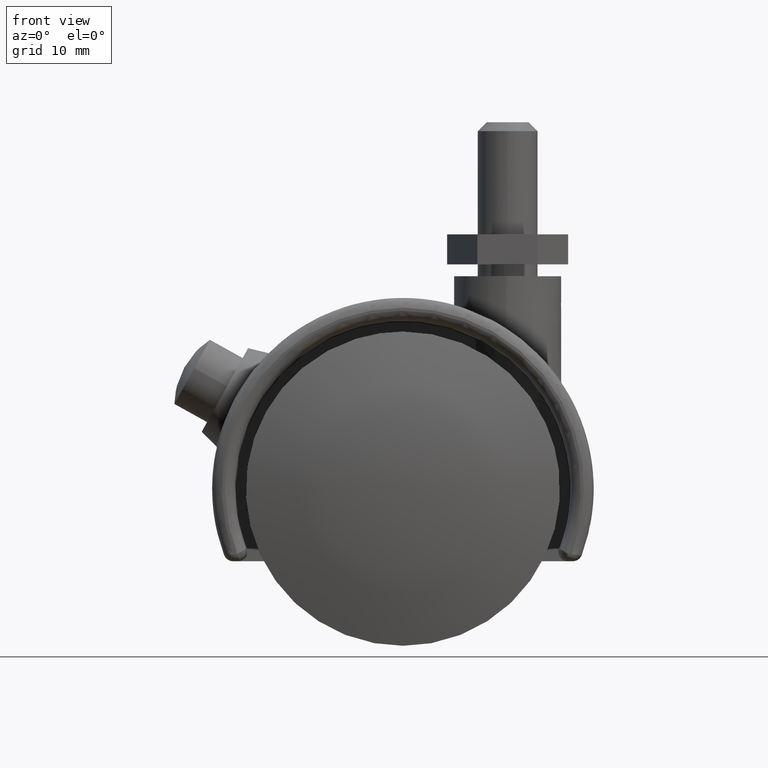
[diagram: clean part render]
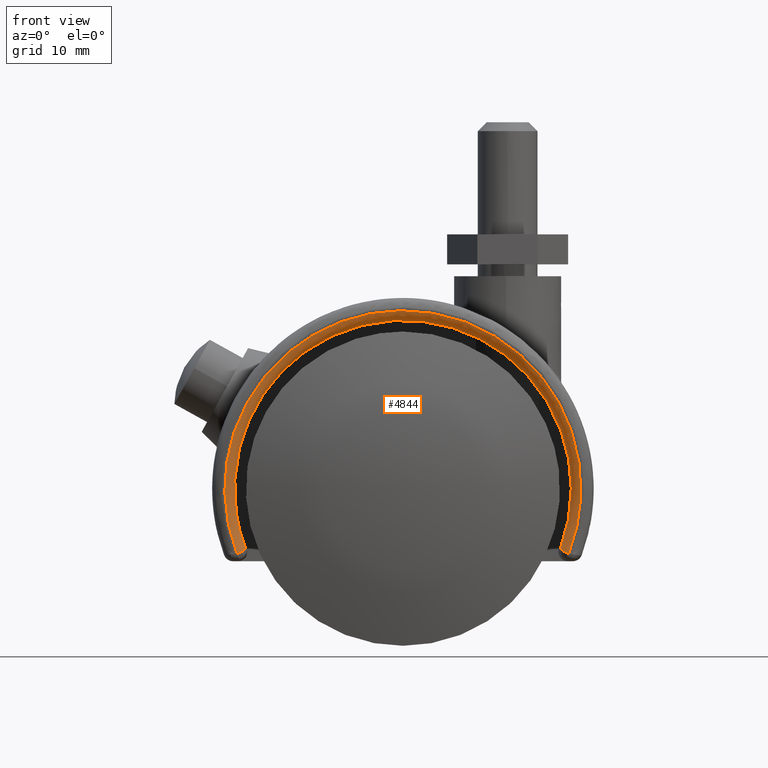
[diagram: same view with one face highlighted and labeled with its STEP entity id]
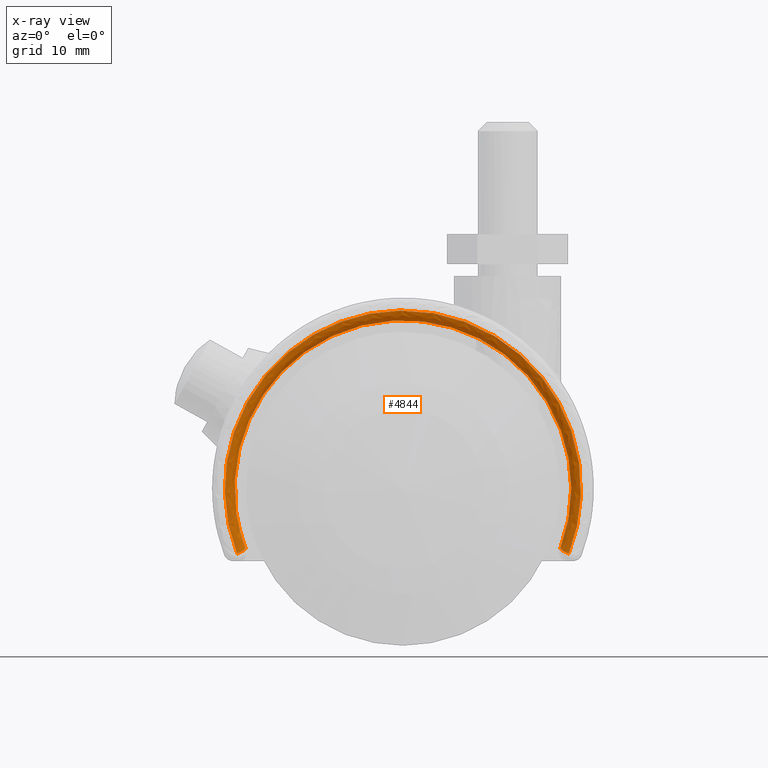
[diagram: x-ray of the same camera — body ghosted, the highlighted face saturated]
A machine part, front view. The second image highlights one B-rep face of the part: STEP entity #4844.
The next image is the same camera in x-ray: the body ghosted, the highlighted face saturated — about 0% of this face is hidden behind the body in this view.
In plain terms, the highlighted face is a freeform B-spline surface patch.
Its self-contained STEP definition (entity closure, byte-faithful):
#4538=CARTESIAN_POINT('',(-21.061098257910501,-15.036064512088350,-7.941509249498371));
#4539=VERTEX_POINT('',#4538);
#4649=CARTESIAN_POINT('',(-22.170625685831801,-16.300000000000001,-8.676943088662389));
#4650=VERTEX_POINT('',#4649);
#4651=CARTESIAN_POINT('',(-21.061098257910501,-15.036064512088350,-7.941509249498350));
#4652=CARTESIAN_POINT('',(-21.056890736808619,-15.119043579732169,-7.959194776190825));
#4653=CARTESIAN_POINT('',(-21.060139738786511,-15.201939595382150,-7.979728607170231));
#4654=CARTESIAN_POINT('',(-21.081283572570118,-15.363685439050609,-8.025593990533805));
#4655=CARTESIAN_POINT('',(-21.099304119081989,-15.443243197359999,-8.051139841795562));
#4656=CARTESIAN_POINT('',(-21.136638165254450,-15.557042609611040,-8.092276009614038));
#4657=CARTESIAN_POINT('',(-21.150812392055979,-15.594171557044721,-8.106489797676792));
#4658=CARTESIAN_POINT('',(-21.182655377669469,-15.666801628287420,-8.135939066392352));
#4659=CARTESIAN_POINT('',(-21.200422564527880,-15.702460953957729,-8.151250333029813));
#4660=CARTESIAN_POINT('',(-21.258191953141068,-15.805266067795170,-8.198018514495576));
#4661=CARTESIAN_POINT('',(-21.302647631452160,-15.868542532054979,-8.230375070335150));
#4662=CARTESIAN_POINT('',(-21.378124377079882,-15.955666121478989,-8.280666821494002));
#4663=CARTESIAN_POINT('',(-21.404758735823432,-15.983400180547481,-8.297725247340091));
#4664=CARTESIAN_POINT('',(-21.461083734082941,-16.036161259819881,-8.332451032913841));
#4665=CARTESIAN_POINT('',(-21.490808098244720,-16.061179109935821,-8.350129841308123));
#4666=CARTESIAN_POINT('',(-21.582760015014319,-16.130527061527381,-8.402971142455225));
#4667=CARTESIAN_POINT('',(-21.648318458092831,-16.169789117267729,-8.438307819913556));
#4668=CARTESIAN_POINT('',(-21.753194225441419,-16.218011810178769,-8.491441812935696));
#4669=CARTESIAN_POINT('',(-21.789285279954520,-16.232283046232940,-8.509185686067859));
#4670=CARTESIAN_POINT('',(-21.862428797402849,-16.256692910215921,-8.544084123048972));
#4671=CARTESIAN_POINT('',(-21.899633329348969,-16.266909195518021,-8.561317548581220));
#4672=CARTESIAN_POINT('',(-21.975315463607291,-16.283356177102910,-8.595341331103548));
#4673=CARTESIAN_POINT('',(-22.013905619982360,-16.289596794402978,-8.612178820079208));
#4674=CARTESIAN_POINT('',(-22.091819501383409,-16.297915318718921,-8.645140047572330));
#4675=CARTESIAN_POINT('',(-22.131072535981289,-16.300000000000001,-8.661237302268209));
#4676=CARTESIAN_POINT('',(-22.170625685831801,-16.300000000000001,-8.676943088662389));
#4677=B_SPLINE_CURVE_WITH_KNOTS('',3,(#4651,#4652,#4653,#4654,#4655,#4656,#4657,#4658,#4659,#4660,#4661,#4662,#4663,#4664,#4665,#4666,#4667,#4668,#4669,#4670,#4671,#4672,#4673,#4674,#4675,#4676),.UNSPECIFIED.,.F.,.U.,(4,2,2,2,2,2,2,2,2,2,2,2,4),(0.0,0.125000000000000,0.250000000000000,0.312500000000001,0.375000000000003,0.500000000000009,0.562500000000009,0.625000000000010,0.750000000000010,0.812500000000007,0.875000000000005,0.937500000000002,1.0),.UNSPECIFIED.);
#4678=EDGE_CURVE('',#4539,#4650,#4677,.T.);
#4744=CARTESIAN_POINT('',(21.053720107725216,-16.296924611251882,-11.306201115175694));
#4745=CARTESIAN_POINT('',(30.344764804959901,-16.296924611251878,5.995017266778057));
#4746=CARTESIAN_POINT('',(15.172382402479947,-16.296924611251882,18.463155912902582));
#4747=CARTESIAN_POINT('',(0.0,-16.296924611251878,30.931294559027105));
#4748=CARTESIAN_POINT('',(-15.172382402479947,-16.296924611251882,18.463155912902582));
#4749=CARTESIAN_POINT('',(-30.344764804959901,-16.296924611251878,5.995017266778057));
#4750=CARTESIAN_POINT('',(-21.053720107725216,-16.296924611251882,-11.306201115175694));
#4751=CARTESIAN_POINT('',(19.778543259953455,-16.396662125663870,-10.621409742223362));
#4752=CARTESIAN_POINT('',(28.506850111861752,-16.396662125663870,5.631912448177272));
#4753=CARTESIAN_POINT('',(14.253425055930874,-16.396662125663870,17.344883757840805));
#4754=CARTESIAN_POINT('',(0.0,-16.396662125663870,29.057855067504324));
#4755=CARTESIAN_POINT('',(-14.253425055930874,-16.396662125663870,17.344883757840805));
#4756=CARTESIAN_POINT('',(-28.506850111861752,-16.396662125663870,5.631912448177272));
#4757=CARTESIAN_POINT('',(-19.778543259953455,-16.396662125663870,-10.621409742223362));
#4758=CARTESIAN_POINT('',(19.830636285229623,-14.947018543605704,-10.649384571253895));
#4759=CARTESIAN_POINT('',(28.581931883249229,-14.947018543605713,5.646745864049215));
#4760=CARTESIAN_POINT('',(14.290965941624620,-14.947018543605704,17.390566974048074));
#4761=CARTESIAN_POINT('',(0.0,-14.947018543605713,29.134388084046936));
#4762=CARTESIAN_POINT('',(-14.290965941624620,-14.947018543605704,17.390566974048074));
#4763=CARTESIAN_POINT('',(-28.581931883249229,-14.947018543605713,5.646745864049215));
#4764=CARTESIAN_POINT('',(-19.830636285229623,-14.947018543605704,-10.649384571253895));
#4772=(BOUNDED_SURFACE()B_SPLINE_SURFACE(2,2,((#4744,#4751,#4758),(#4745,#4752,#4759),(#4746,#4753,#4760),(#4747,#4754,#4761),(#4748,#4755,#4762),(#4749,#4756,#4763),(#4750,#4757,#4764)),.UNSPECIFIED.,.F.,.F.,.U.)B_SPLINE_SURFACE_WITH_KNOTS((3,2,2,3),(3,3),(0.0,34.237604276162948,68.475208552325896,102.712812828488790),(0.0,2.322737042503980),.UNSPECIFIED.)GEOMETRIC_REPRESENTATION_ITEM()RATIONAL_B_SPLINE_SURFACE(((0.915248920213574,0.612091658940195,0.919209522537824),(0.707120039825529,0.472901162391610,0.710179995659842),(0.915248920213574,0.612091658940195,0.919209522537824),(0.707120039825529,0.472901162391610,0.710179995659842),(0.915248920213574,0.612091658940195,0.919209522537824),(0.707120039825529,0.472901162391610,0.710179995659842),(0.915248920213574,0.612091658940195,0.919209522537824)))REPRESENTATION_ITEM('')SURFACE());
#4773=CARTESIAN_POINT('',(21.061098257910601,-15.036064512088350,-7.941509249498411));
#4774=VERTEX_POINT('',#4773);
#4775=CARTESIAN_POINT('',(22.170625685831801,-16.300000000000001,-8.676943088662409));
#4776=VERTEX_POINT('',#4775);
#4777=CARTESIAN_POINT('',(21.061098257910601,-15.036064512088350,-7.941509249498411));
#4778=CARTESIAN_POINT('',(21.058996149633391,-15.077521524893291,-7.950345072892488));
#4779=CARTESIAN_POINT('',(21.058751027155122,-15.118936299713971,-7.959885073293286));
#4780=CARTESIAN_POINT('',(21.061933789004950,-15.200948109946360,-7.980200948788988));
#4781=CARTESIAN_POINT('',(21.065355269692301,-15.241661758611921,-7.991001391778179));
#4782=CARTESIAN_POINT('',(21.075876964161971,-15.322498420874240,-8.013905986481767));
#4783=CARTESIAN_POINT('',(21.083014659530669,-15.362758834753031,-8.026056771085171));
#4784=CARTESIAN_POINT('',(21.100846141228018,-15.441704799131200,-8.051397355115380));
#4785=CARTESIAN_POINT('',(21.111532486980082,-15.480446694692830,-8.064597313044457));
#4786=CARTESIAN_POINT('',(21.148876363136822,-15.594485135112031,-8.105792621848075));
#4787=CARTESIAN_POINT('',(21.181132329988039,-15.668052736901339,-8.135615293558825));
#4788=CARTESIAN_POINT('',(21.257648273405021,-15.804377694625440,-8.197596537058654));
#4789=CARTESIAN_POINT('',(21.301992486260559,-15.867717991876010,-8.229922906911195));
#4790=CARTESIAN_POINT('',(21.377817551256609,-15.955345672255421,-8.280470092547452));
#4791=CARTESIAN_POINT('',(21.404803295051739,-15.983449532775120,-8.297754462558128));
#4792=CARTESIAN_POINT('',(21.461269478787731,-16.036327608115009,-8.332563798766879));
#4793=CARTESIAN_POINT('',(21.520074590521659,-16.085799575181561,-8.367533573969650));
#4794=CARTESIAN_POINT('',(21.583493664762230,-16.128557595961610,-8.402813251198001));
#4795=CARTESIAN_POINT('',(21.649253754103501,-16.167913452442530,-8.438244697188019));
#4796=CARTESIAN_POINT('',(21.683453383544940,-16.185955957102561,-8.456111174828918));
#4797=CARTESIAN_POINT('',(21.788589426850670,-16.234263612467679,-8.509368947106994));
#4798=CARTESIAN_POINT('',(21.861540141298690,-16.258623750820082,-8.544190606621802));
#4799=CARTESIAN_POINT('',(21.975299148490819,-16.283356206763870,-8.595334848257020));
#4800=CARTESIAN_POINT('',(22.014004033953938,-16.289609052488810,-8.612220876639913));
#4801=CARTESIAN_POINT('',(22.091818193186651,-16.297913426005628,-8.645139070782637));
#4802=CARTESIAN_POINT('',(22.131054401510479,-16.300000000000001,-8.661230101422632));
#4803=CARTESIAN_POINT('',(22.170625685831801,-16.300000000000001,-8.676943088662409));
#4804=B_SPLINE_CURVE_WITH_KNOTS('',3,(#4777,#4778,#4779,#4780,#4781,#4782,#4783,#4784,#4785,#4786,#4787,#4788,#4789,#4790,#4791,#4792,#4793,#4794,#4795,#4796,#4797,#4798,#4799,#4800,#4801,#4802,#4803),.UNSPECIFIED.,.F.,.U.,(4,2,2,2,2,2,2,2,1,2,2,2,2,4),(0.0,0.062500000000000,0.125000000000000,0.187500000000000,0.250000000000000,0.374999999999996,0.499999999999992,0.562499999999991,0.624999999999990,0.687499999999988,0.749999999999987,0.874999999999991,0.937499999999995,1.0),.UNSPECIFIED.);
#4805=EDGE_CURVE('',#4774,#4776,#4804,.T.);
#4806=ORIENTED_EDGE('',*,*,#4805,.T.);
#4807=CARTESIAN_POINT('',(-22.170625685831801,-16.300000000000001,-8.676943088662389));
#4808=CARTESIAN_POINT('',(-28.738815646192680,-16.299999999999994,8.105566552880973));
#4809=CARTESIAN_POINT('',(-14.369407823096330,-16.300000000000001,18.982784397413589));
#4810=CARTESIAN_POINT('',(5.204170E-015,-16.299999999999994,29.860002241946201));
#4811=CARTESIAN_POINT('',(14.369407823096340,-16.300000000000001,18.982784397413582));
#4812=CARTESIAN_POINT('',(28.738815646192691,-16.299999999999994,8.105566552880960));
#4813=CARTESIAN_POINT('',(22.170625685831801,-16.300000000000001,-8.676943088662398));
#4821=(BOUNDED_CURVE()B_SPLINE_CURVE(2,(#4807,#4808,#4809,#4810,#4811,#4812,#4813),.UNSPECIFIED.,.F.,.U.)B_SPLINE_CURVE_WITH_KNOTS((3,2,2,3),(0.0,0.333333333333333,0.666666666666667,1.0),.UNSPECIFIED.)CURVE()GEOMETRIC_REPRESENTATION_ITEM()RATIONAL_B_SPLINE_CURVE((1.0,0.797324372171787,1.0,0.797324372171787,1.0,0.797324372171787,1.0))REPRESENTATION_ITEM(''));
#4822=EDGE_CURVE('',#4650,#4776,#4821,.T.);
#4823=ORIENTED_EDGE('',*,*,#4822,.F.);
#4824=ORIENTED_EDGE('',*,*,#4678,.F.);
#4825=CARTESIAN_POINT('',(21.061098257910601,-15.036064512088350,-7.941509249498411));
#4826=CARTESIAN_POINT('',(27.020859547919638,-15.036064512088354,7.863939586376598));
#4827=CARTESIAN_POINT('',(13.510429773959819,-15.036064512088350,18.002936324725681));
#4828=CARTESIAN_POINT('',(6.938894E-015,-15.036064512088354,28.141933063074760));
#4829=CARTESIAN_POINT('',(-13.510429773959810,-15.036064512088350,18.002936324725692));
#4830=CARTESIAN_POINT('',(-27.020859547919628,-15.036064512088354,7.863939586376612));
#4831=CARTESIAN_POINT('',(-21.061098257910469,-15.036064512088350,-7.941509249498361));
#4839=(BOUNDED_CURVE()B_SPLINE_CURVE(2,(#4825,#4826,#4827,#4828,#4829,#4830,#4831),.UNSPECIFIED.,.F.,.U.)B_SPLINE_CURVE_WITH_KNOTS((3,2,2,3),(0.0,0.333333333333333,0.666666666666667,1.0),.UNSPECIFIED.)CURVE()GEOMETRIC_REPRESENTATION_ITEM()RATIONAL_B_SPLINE_CURVE((1.0,0.799824512270492,1.0,0.799824512270492,1.0,0.799824512270492,1.0))REPRESENTATION_ITEM(''));
#4840=EDGE_CURVE('',#4774,#4539,#4839,.T.);
#4841=ORIENTED_EDGE('',*,*,#4840,.F.);
#4842=EDGE_LOOP('',(#4806,#4823,#4824,#4841));
#4843=FACE_OUTER_BOUND('',#4842,.T.);
#4844=ADVANCED_FACE('',(#4843),#4772,.T.);